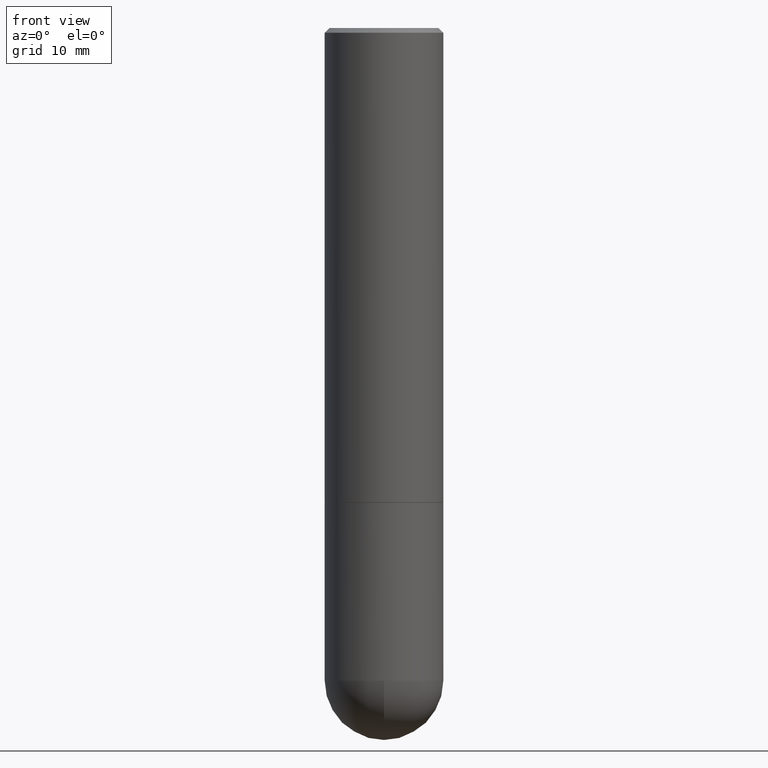
[diagram: clean part render]
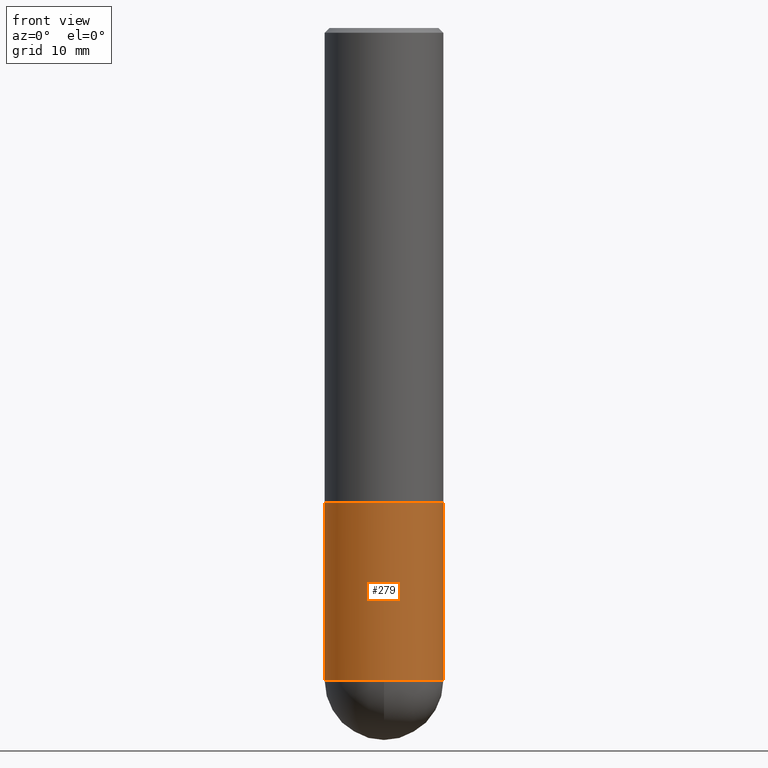
[diagram: same view with one face highlighted and labeled with its STEP entity id]
A machine part, front view. The second image highlights one B-rep face of the part: STEP entity #279.
In plain terms, the highlighted cylindrical surface (partial cylindrical patch) has radius 6.35 mm, axis along (-0, 0, 1).
Its self-contained STEP definition (entity closure, byte-faithful):
#1 = CARTESIAN_POINT ( 'NONE',  ( 6.725039217009124520E-29, -9.601573681818649859E-15, -2.750000000000000000 ) ) ;
#8 = CARTESIAN_POINT ( 'NONE',  ( -0.2500000000000000000, -6.515911340352222020E-15, -2.750000000000000000 ) ) ;
#15 = CIRCLE ( 'NONE', #259, 0.2500000000000000000 ) ;
#25 = CARTESIAN_POINT ( 'NONE',  ( 0.2500000000000000000, -8.728703347107858632E-15, -2.000000000000000444 ) ) ;
#27 = DIRECTION ( 'NONE',  ( -2.445468806185136877E-29, 3.491481338843145188E-15, 1.000000000000000000 ) ) ;
#48 = EDGE_CURVE ( 'NONE', #51, #56, #54, .T. ) ;
#51 = VERTEX_POINT ( 'NONE', #159 ) ;
#54 = CIRCLE ( 'NONE', #321, 0.2500000000000000000 ) ;
#56 = VERTEX_POINT ( 'NONE', #25 ) ;
#61 = VECTOR ( 'NONE', #196, 39.37007874015748143 ) ;
#67 = DIRECTION ( 'NONE',  ( 1.000000000000000000, -6.982962677686266711E-15, 4.876176775795935793E-29 ) ) ;
#70 = VERTEX_POINT ( 'NONE', #347 ) ;
#89 = DIRECTION ( 'NONE',  ( -2.445468806185136597E-29, 3.491481338843145583E-15, 1.000000000000000000 ) ) ;
#101 = FACE_OUTER_BOUND ( 'NONE', #146, .T. ) ;
#111 = ORIENTED_EDGE ( 'NONE', *, *, #113, .T. ) ;
#113 = EDGE_CURVE ( 'NONE', #70, #362, #15, .T. ) ;
#120 = ORIENTED_EDGE ( 'NONE', *, *, #125, .T. ) ;
#125 = EDGE_CURVE ( 'NONE', #362, #56, #127, .T. ) ;
#127 = LINE ( 'NONE', #312, #198 ) ;
#136 = EDGE_CURVE ( 'NONE', #407, #51, #154, .T. ) ;
#142 = CIRCLE ( 'NONE', #149, 0.2500000000000000000 ) ;
#146 = EDGE_LOOP ( 'NONE', ( #273, #147, #111, #120, #336 ) ) ;
#147 = ORIENTED_EDGE ( 'NONE', *, *, #207, .T. ) ;
#149 = AXIS2_PLACEMENT_3D ( 'NONE', #161, #333, #204 ) ;
#154 = LINE ( 'NONE', #235, #61 ) ;
#156 = DIRECTION ( 'NONE',  ( -2.445468806185136597E-29, 3.491481338843145583E-15, 1.000000000000000000 ) ) ;
#159 = CARTESIAN_POINT ( 'NONE',  ( -0.2500000000000000000, -6.515911340352220442E-15, -2.000000000000000444 ) ) ;
#161 = CARTESIAN_POINT ( 'NONE',  ( 6.725039217009124520E-29, -9.601573681818649859E-15, -2.750000000000000000 ) ) ;
#196 = DIRECTION ( 'NONE',  ( -2.445468806185136877E-29, 3.491481338843145188E-15, 1.000000000000000000 ) ) ;
#198 = VECTOR ( 'NONE', #27, 39.37007874015748143 ) ;
#204 = DIRECTION ( 'NONE',  ( 1.000000000000000000, -6.982962677686262766E-15, 0.000000000000000000 ) ) ;
#207 = EDGE_CURVE ( 'NONE', #407, #70, #142, .T. ) ;
#235 = CARTESIAN_POINT ( 'NONE',  ( -0.2500000000000000000, 1.776356839400250465E-15, -1.229733772563726445E-29 ) ) ;
#248 = CYLINDRICAL_SURFACE ( 'NONE', #290, 0.2500000000000000000 ) ;
#259 = AXIS2_PLACEMENT_3D ( 'NONE', #1, #286, #412 ) ;
#273 = ORIENTED_EDGE ( 'NONE', *, *, #136, .F. ) ;
#279 = ADVANCED_FACE ( 'NONE', ( #101 ), #248, .T. ) ;
#286 = DIRECTION ( 'NONE',  ( -2.445468806185136597E-29, 3.491481338843145583E-15, 1.000000000000000000 ) ) ;
#290 = AXIS2_PLACEMENT_3D ( 'NONE', #375, #156, #67 ) ;
#293 = CARTESIAN_POINT ( 'NONE',  ( 0.2500000000000000000, -1.003800884917403995E-14, -2.750000000000000000 ) ) ;
#312 = CARTESIAN_POINT ( 'NONE',  ( 0.2500000000000000000, -1.745740669421566678E-15, 1.219044193948983948E-29 ) ) ;
#313 = DIRECTION ( 'NONE',  ( 1.000000000000000000, -6.982962677686266711E-15, 0.000000000000000000 ) ) ;
#321 = AXIS2_PLACEMENT_3D ( 'NONE', #405, #89, #313 ) ;
#333 = DIRECTION ( 'NONE',  ( -2.445468806185136597E-29, 3.491481338843145583E-15, 1.000000000000000000 ) ) ;
#336 = ORIENTED_EDGE ( 'NONE', *, *, #48, .F. ) ;
#347 = CARTESIAN_POINT ( 'NONE',  ( -1.776356839400184989E-15, -0.2500000000000098810, -2.749999999999998668 ) ) ;
#362 = VERTEX_POINT ( 'NONE', #293 ) ;
#375 = CARTESIAN_POINT ( 'NONE',  ( 0.000000000000000000, 0.000000000000000000, 0.000000000000000000 ) ) ;
#405 = CARTESIAN_POINT ( 'NONE',  ( 4.890937612370273754E-29, -6.982962677686291954E-15, -2.000000000000000444 ) ) ;
#407 = VERTEX_POINT ( 'NONE', #8 ) ;
#412 = DIRECTION ( 'NONE',  ( 1.000000000000000000, -6.982962677686262766E-15, 0.000000000000000000 ) ) ;